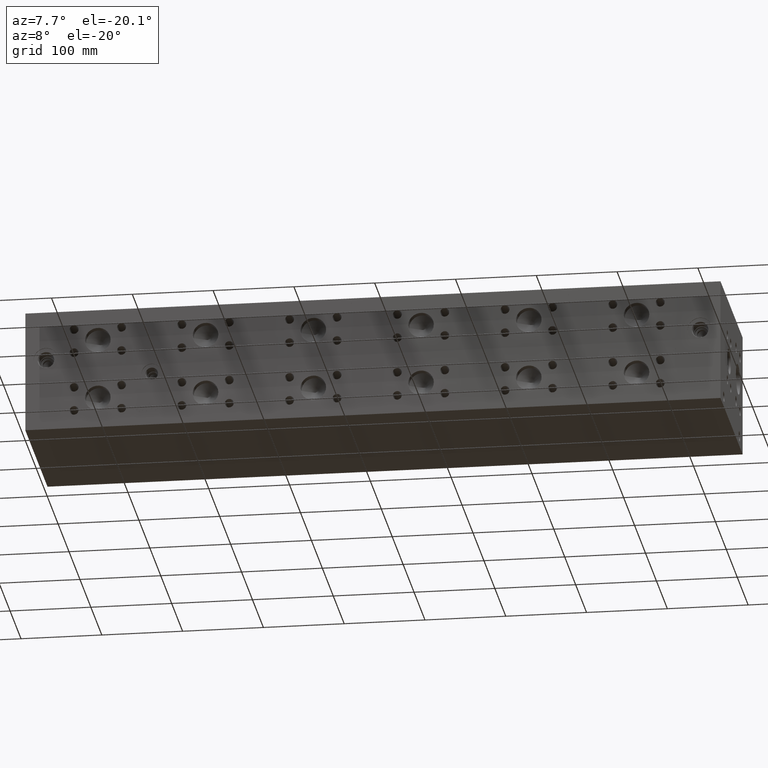
[diagram: clean part render]
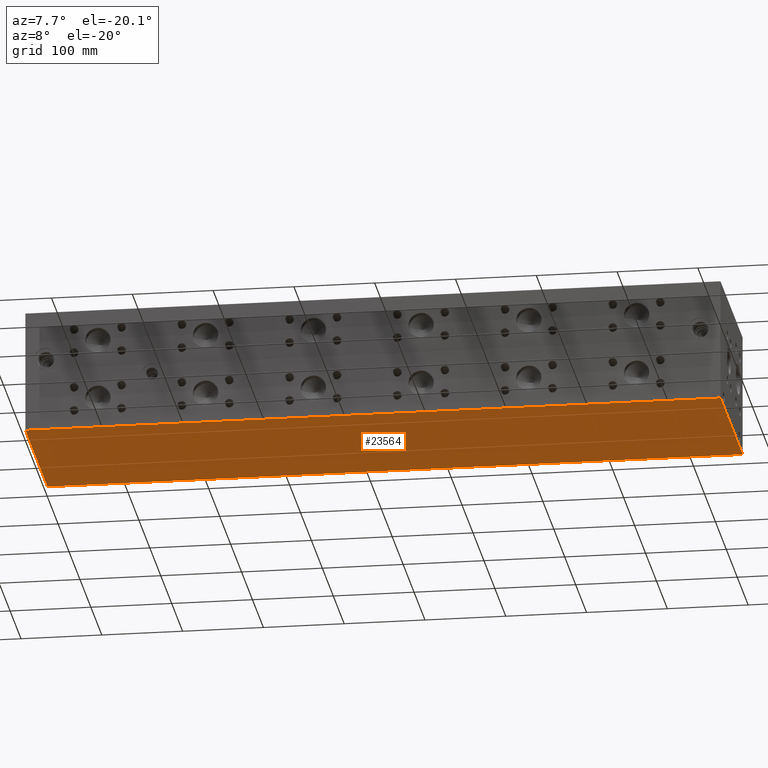
[diagram: same view with one face highlighted and labeled with its STEP entity id]
A machine part, auxiliary view. The second image highlights one B-rep face of the part: STEP entity #23564.
In plain terms, the highlighted planar face has unit normal (0, 0, 1).
Its self-contained STEP definition (entity closure, byte-faithful):
#3705=FACE_OUTER_BOUND('',#5286,.T.);
#5286=EDGE_LOOP('',(#21122,#21123,#21124,#21125));
#5320=LINE('',#31598,#7146);
#6570=LINE('',#37898,#8396);
#6629=LINE('',#38202,#8455);
#7111=LINE('',#41176,#8937);
#7146=VECTOR('',#25680,10.);
#8396=VECTOR('',#28004,10.);
#8455=VECTOR('',#28149,10.);
#8937=VECTOR('',#31517,10.);
#8961=VERTEX_POINT('',#31596);
#8962=VERTEX_POINT('',#31597);
#10195=VERTEX_POINT('',#37897);
#10269=VERTEX_POINT('',#38201);
#11352=EDGE_CURVE('',#8961,#8962,#5320,.T.);
#13138=EDGE_CURVE('',#8962,#10195,#6570,.T.);
#13237=EDGE_CURVE('',#10269,#8961,#6629,.T.);
#14586=EDGE_CURVE('',#10195,#10269,#7111,.T.);
#21122=ORIENTED_EDGE('',*,*,#11352,.F.);
#21123=ORIENTED_EDGE('',*,*,#13237,.F.);
#21124=ORIENTED_EDGE('',*,*,#14586,.F.);
#21125=ORIENTED_EDGE('',*,*,#13138,.F.);
#21693=PLANE('',#25618);
#23564=ADVANCED_FACE('',(#3705),#21693,.F.);
#25618=AXIS2_PLACEMENT_3D('',#41181,#31525,#31526);
#25680=DIRECTION('',(1.,0.,0.));
#28004=DIRECTION('',(0.,1.,0.));
#28149=DIRECTION('',(0.,-1.,0.));
#31517=DIRECTION('',(-1.,0.,0.));
#31525=DIRECTION('center_axis',(0.,0.,1.));
#31526=DIRECTION('ref_axis',(1.,0.,0.));
#31596=CARTESIAN_POINT('',(0.,0.,0.));
#31597=CARTESIAN_POINT('',(860.425,0.,0.));
#31598=CARTESIAN_POINT('',(0.,0.,0.));
#37897=CARTESIAN_POINT('',(860.425,203.2,0.));
#37898=CARTESIAN_POINT('',(860.425,0.,0.));
#38201=CARTESIAN_POINT('',(0.,203.2,0.));
#38202=CARTESIAN_POINT('',(0.,203.2,0.));
#41176=CARTESIAN_POINT('',(860.425,203.2,0.));
#41181=CARTESIAN_POINT('Origin',(430.2125,101.6,0.));